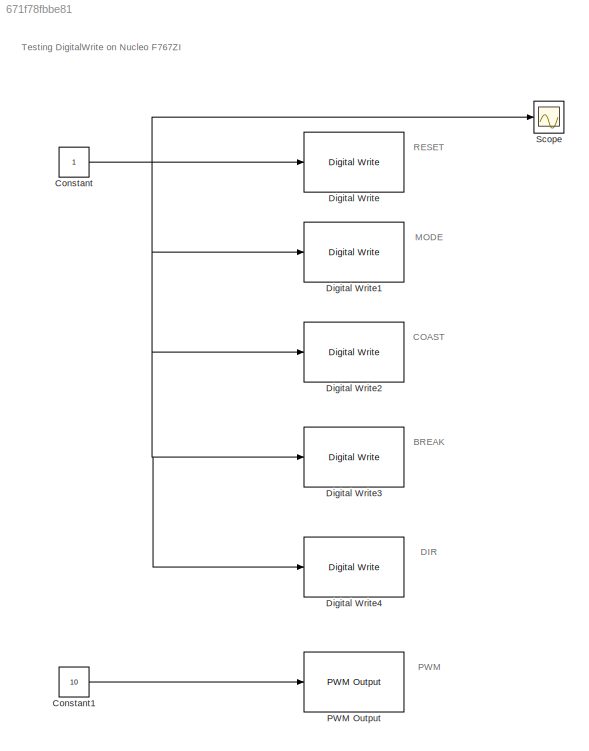
MODEL slx_671f78fbbe81
KIND model
CONFIG AbsTol = auto
CONFIG EnableMultiTasking = on
CONFIG FixedStep = auto
CONFIG MaxStep = auto
CONFIG MinStep = auto
CONFIG RelTol = 1e-3
CONFIG SampleTimeConstraint = Unconstrained
CONFIG Solver = FixedStepAuto
CONFIG SolverName = FixedStepAuto
CONFIG StartTime = 0.0
CONFIG StopTime = 200.0
BLOCK [Constant] Constant
BLOCK [Constant] Constant1
  Value = 10
BLOCK [Reference] Digital Write  REF=mbedblockslib/Digital Write
  Ports = [1]
  SourceBlock = mbedblockslib/Digital Write
  SourceProductBaseCode = MICROBIT
  SourceProductName = Simulink Coder Support Package for BBC microbit Board
  SourceType = mbed.DigitalWrite
BLOCK [Reference] Digital Write1  REF=mbedblockslib/Digital Write
  Ports = [1]
  SourceBlock = mbedblockslib/Digital Write
  SourceProductBaseCode = MICROBIT
  SourceProductName = Simulink Coder Support Package for BBC microbit Board
  SourceType = mbed.DigitalWrite
BLOCK [Reference] Digital Write2  REF=mbedblockslib/Digital Write
  Ports = [1]
  SourceBlock = mbedblockslib/Digital Write
  SourceProductBaseCode = MICROBIT
  SourceProductName = Simulink Coder Support Package for BBC microbit Board
  SourceType = mbed.DigitalWrite
BLOCK [Reference] Digital Write3  REF=mbedblockslib/Digital Write
  Ports = [1]
  SourceBlock = mbedblockslib/Digital Write
  SourceProductBaseCode = MICROBIT
  SourceProductName = Simulink Coder Support Package for BBC microbit Board
  SourceType = mbed.DigitalWrite
BLOCK [Reference] Digital Write4  REF=mbedblockslib/Digital Write
  Ports = [1]
  SourceBlock = mbedblockslib/Digital Write
  SourceProductBaseCode = MICROBIT
  SourceProductName = Simulink Coder Support Package for BBC microbit Board
  SourceType = mbed.DigitalWrite
BLOCK [Reference] PWM Output  REF=mbedblockslib/PWM Output
  Ports = [1]
  SourceBlock = mbedblockslib/PWM Output
  SourceProductBaseCode = MICROBIT
  SourceProductName = Simulink Coder Support Package for BBC microbit Board
  SourceType = mbed.PWMOutput
BLOCK [Scope] Scope
  Floating = off
  NumInputPorts = 1
  Ports = [1]
  ScopeSpecificationString = Simulink.scopes.TimeScopeBlockCfg('CurrentConfiguration', extmgr.ConfigurationSet(extmgr.Configuration('Core','General UI',true),extmgr.Configuration('Core','Source UI',true),extmgr.Configuration('Sources','WiredSimulink',true),extmgr.Configuration('Visuals','Time Domain',true,'SerializedDisplays',{struct('MinYLimReal','0.9','MaxYLimReal','1.1','YLabelReal','','MinYLimMag','0.9','MaxYLimMag','1.1'...<+1325ch>
ANNOTATION (root): BREAK
ANNOTATION (root): COAST
ANNOTATION (root): DIR
ANNOTATION (root): MODE
ANNOTATION (root): RESET
ANNOTATION (root): Testing DigitalWrite on Nucleo F767ZI
ANNOTATION (root): PWM
LINE Constant1:1 -> PWM Output:1
NET Constant:1 -> Digital Write1:1, Digital Write2:1, Digital Write3:1, Digital Write4:1, Digital Write:1, Scope:1
note: NET lines group one-source signal fan-out (src -> all destinations, sorted); 1:1 wires keep LINE
